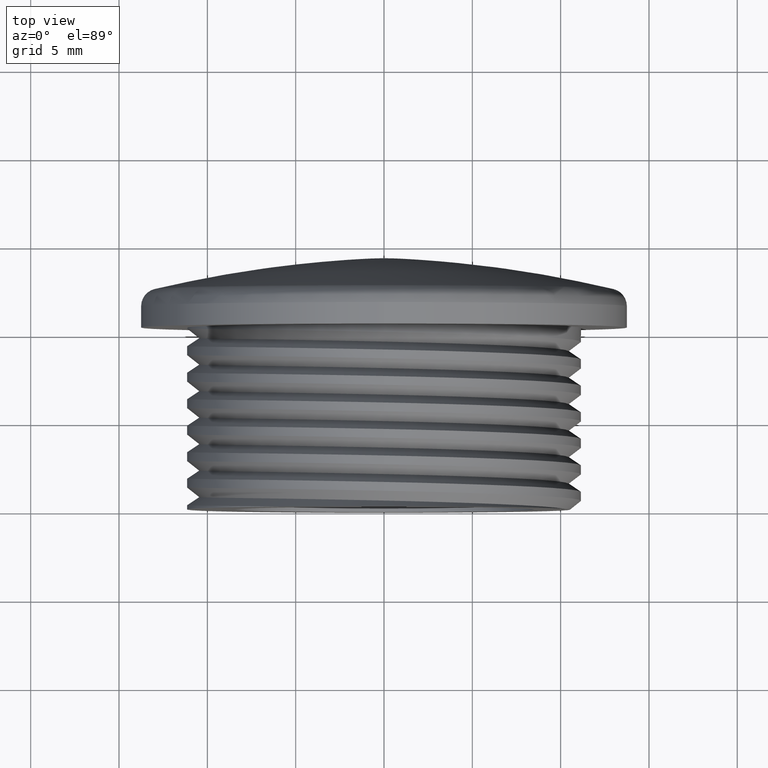
[diagram: clean part render]
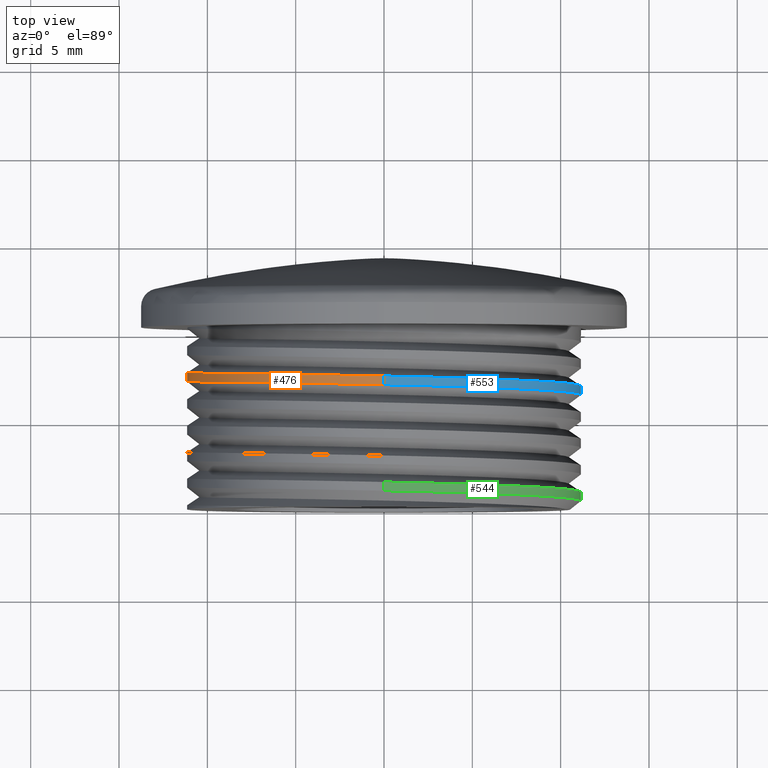
[diagram: same view with three faces highlighted in distinct colors, each labeled with its STEP entity id]
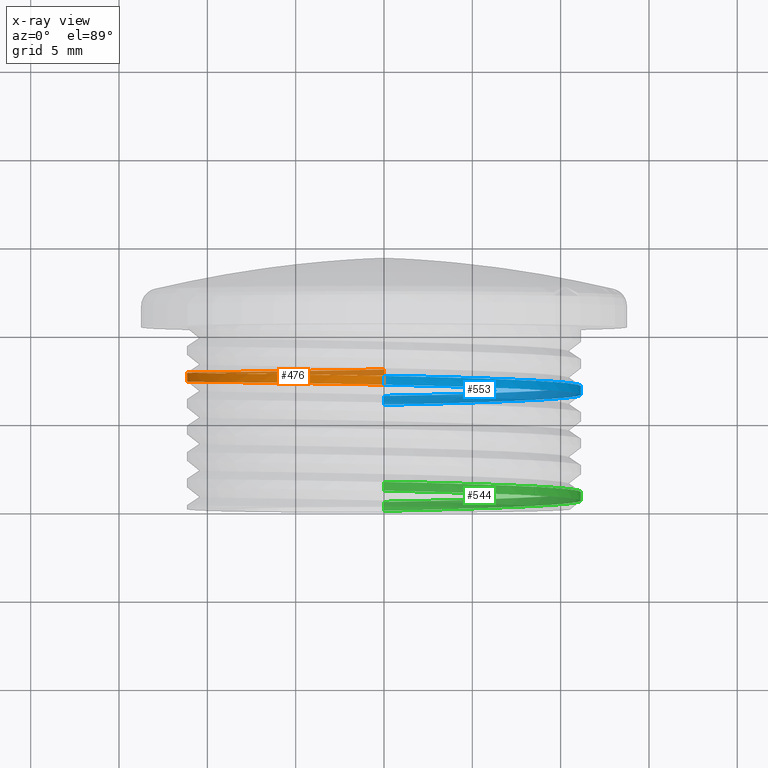
[diagram: x-ray of the same camera — body ghosted, the three highlighted faces saturated]
A machine part, top view with three faces highlighted in distinct colors.
The next image is the same camera in x-ray (body ghosted, the three faces saturated) — at least one of them is partly hidden behind the body in this view.
Their STEP definitions:

[orange] entity #476 — the highlighted cylindrical surface (partial cylindrical patch) has radius 11.15 mm, axis along (0, 1, 0).
#53 = EDGE_LOOP ( 'NONE', ( #1819, #1831, #1830, #1822 ) ) ;
#65 =( BOUNDED_CURVE ( )  B_SPLINE_CURVE ( 2, ( #987, #991, #993, #996, #997, #976, #977, #1007, #982 ),
 .UNSPECIFIED., .F., .T. ) 
 B_SPLINE_CURVE_WITH_KNOTS ( ( 3, 2, 2, 2, 3 ),
 ( 0.08807815879143399100, 0.09688620127422088700, 0.1056942437570077800, 0.1145022862397946800, 0.1233103287225815700 ),
 .UNSPECIFIED. ) 
 CURVE ( )  GEOMETRIC_REPRESENTATION_ITEM ( )  RATIONAL_B_SPLINE_CURVE ( ( 1.000000000000000000, 0.9238795325112867400, 1.000000000000000000, 0.9238795325112867400, 1.000000000000000000, 0.9238795325112867400, 1.000000000000000000, 0.9238795325112867400, 1.000000000000000000 ) ) 
 REPRESENTATION_ITEM ( '' )  );
#66 =( BOUNDED_CURVE ( )  B_SPLINE_CURVE ( 2, ( #1004, #992, #1013, #995, #975, #1035, #1057, #1074, #1056 ),
 .UNSPECIFIED., .F., .T. ) 
 B_SPLINE_CURVE_WITH_KNOTS ( ( 3, 2, 2, 2, 3 ),
 ( 0.3225174112594823000, 0.3313210563783562900, 0.3401247014972302900, 0.3489283466161043300, 0.3577319917349783300 ),
 .UNSPECIFIED. ) 
 CURVE ( )  GEOMETRIC_REPRESENTATION_ITEM ( )  RATIONAL_B_SPLINE_CURVE ( ( 1.000000000000000000, 0.9238795325112867400, 1.000000000000000000, 0.9238795325112867400, 1.000000000000000000, 0.9238795325112867400, 1.000000000000000000, 0.9238795325112867400, 1.000000000000000000 ) ) 
 REPRESENTATION_ITEM ( '' )  );
#418 = VERTEX_POINT ( 'NONE', #1553 ) ;
#439 = VERTEX_POINT ( 'NONE', #1560 ) ;
#454 = VERTEX_POINT ( 'NONE', #1554 ) ;
#455 = VERTEX_POINT ( 'NONE', #1524 ) ;
#471 = EDGE_CURVE ( 'NONE', #418, #454, #1594, .T. ) ;
#476 = ADVANCED_FACE ( 'NONE', ( #571 ), #582, .T. ) ;
#512 = EDGE_CURVE ( 'NONE', #439, #455, #811, .T. ) ;
#551 = EDGE_CURVE ( 'NONE', #455, #454, #65, .T. ) ;
#556 = EDGE_CURVE ( 'NONE', #418, #439, #66, .T. ) ;
#566 = CARTESIAN_POINT ( 'NONE',  ( 0.0000000000000000000, -36.57566321623292500, 0.0000000000000000000 ) ) ;
#571 = FACE_OUTER_BOUND ( 'NONE', #53, .T. ) ;
#575 = DIRECTION ( 'NONE',  ( 0.0000000000000000000, 0.0000000000000000000, 1.000000000000000000 ) ) ;
#582 = CYLINDRICAL_SURFACE ( 'NONE', #1667, 11.15000000000000000 ) ;
#607 = DIRECTION ( 'NONE',  ( 0.0000000000000000000, 1.000000000000000000, 0.0000000000000000000 ) ) ;
#806 = CARTESIAN_POINT ( 'NONE',  ( 1.365481181049298800E-015, -36.57566321623292500, -11.15000000000000000 ) ) ;
#811 = LINE ( 'NONE', #806, #1682 ) ;
#813 = DIRECTION ( 'NONE',  ( 0.0000000000000000000, 1.000000000000000000, 0.0000000000000000000 ) ) ;
#975 = CARTESIAN_POINT ( 'NONE',  ( -11.15000000000000000, 7.244760528949536000, -1.365481181049298800E-015 ) ) ;
#976 = CARTESIAN_POINT ( 'NONE',  ( -11.15000000000000700, 7.648587584210168300, 4.618481220460007600 ) ) ;
#977 = CARTESIAN_POINT ( 'NONE',  ( -7.884240610230006200, 7.554837584210169200, 7.884240610230004400 ) ) ;
#982 = CARTESIAN_POINT ( 'NONE',  ( -2.048221771573948700E-015, 7.367337584210168300, 11.15000000000000000 ) ) ;
#987 = CARTESIAN_POINT ( 'NONE',  ( 6.827405905246491200E-016, 8.117337584210174500, -11.14999999999999500 ) ) ;
#991 = CARTESIAN_POINT ( 'NONE',  ( -4.618481220460009400, 8.023587584210167400, -11.15000000000000000 ) ) ;
#992 = CARTESIAN_POINT ( 'NONE',  ( -4.618481220460016500, 6.963510528949535100, 11.14999999999999900 ) ) ;
#993 = CARTESIAN_POINT ( 'NONE',  ( -7.884240610230004400, 7.929837584210166500, -7.884240610230004400 ) ) ;
#995 = CARTESIAN_POINT ( 'NONE',  ( -11.15000000000000700, 7.151010528949534300, 4.618481220460007600 ) ) ;
#996 = CARTESIAN_POINT ( 'NONE',  ( -11.15000000000000000, 7.836087584210170000, -4.618481220460013000 ) ) ;
#997 = CARTESIAN_POINT ( 'NONE',  ( -11.15000000000000000, 7.742337584210167400, -1.365481181049298800E-015 ) ) ;
#1004 = CARTESIAN_POINT ( 'NONE',  ( -2.048221771573948400E-015, 6.869760528949534300, 11.14999999999999700 ) ) ;
#1007 = CARTESIAN_POINT ( 'NONE',  ( -4.618481220460016500, 7.461087584210167400, 11.14999999999999900 ) ) ;
#1013 = CARTESIAN_POINT ( 'NONE',  ( -7.884240610230006200, 7.057260528949534300, 7.884240610230004400 ) ) ;
#1035 = CARTESIAN_POINT ( 'NONE',  ( -11.15000000000000000, 7.338510528949534300, -4.618481220460013000 ) ) ;
#1056 = CARTESIAN_POINT ( 'NONE',  ( 6.827405905246495200E-016, 7.619760528949536000, -11.15000000000000000 ) ) ;
#1057 = CARTESIAN_POINT ( 'NONE',  ( -7.884240610230004400, 7.432260528949535100, -7.884240610230004400 ) ) ;
#1074 = CARTESIAN_POINT ( 'NONE',  ( -4.618481220460009400, 7.526010528949535100, -11.15000000000000000 ) ) ;
#1524 = CARTESIAN_POINT ( 'NONE',  ( 6.827405905246491200E-016, 8.117337584210174500, -11.14999999999999500 ) ) ;
#1553 = CARTESIAN_POINT ( 'NONE',  ( -2.048221771573948400E-015, 6.869760528949534300, 11.14999999999999700 ) ) ;
#1554 = CARTESIAN_POINT ( 'NONE',  ( -2.048221771573948700E-015, 7.367337584210168300, 11.15000000000000000 ) ) ;
#1560 = CARTESIAN_POINT ( 'NONE',  ( 6.827405905246495200E-016, 7.619760528949536000, -11.15000000000000000 ) ) ;
#1579 = CARTESIAN_POINT ( 'NONE',  ( 0.0000000000000000000, -36.57566321623292500, 11.15000000000000000 ) ) ;
#1594 = LINE ( 'NONE', #1579, #1641 ) ;
#1641 = VECTOR ( 'NONE', #1987, 1000.000000000000000 ) ;
#1667 = AXIS2_PLACEMENT_3D ( 'NONE', #566, #607, #575 ) ;
#1682 = VECTOR ( 'NONE', #813, 1000.000000000000000 ) ;
#1819 = ORIENTED_EDGE ( 'NONE', *, *, #512, .F. ) ;
#1822 = ORIENTED_EDGE ( 'NONE', *, *, #551, .F. ) ;
#1830 = ORIENTED_EDGE ( 'NONE', *, *, #471, .T. ) ;
#1831 = ORIENTED_EDGE ( 'NONE', *, *, #556, .F. ) ;
#1987 = DIRECTION ( 'NONE',  ( 0.0000000000000000000, 1.000000000000000000, 0.0000000000000000000 ) ) ;

[blue] entity #553 — the highlighted cylindrical surface (partial cylindrical patch) has radius 11.15 mm, axis along (0, 1, 0).
#6 =( BOUNDED_CURVE ( )  B_SPLINE_CURVE ( 2, ( #610, #589, #593, #574, #587, #606, #580, #583, #588 ),
 .UNSPECIFIED., .F., .F. ) 
 B_SPLINE_CURVE_WITH_KNOTS ( ( 3, 2, 2, 2, 3 ),
 ( 0.1233103287225815700, 0.1321165433954450400, 0.1409227580683085100, 0.1497289727411719500, 0.1585351874140354100 ),
 .UNSPECIFIED. ) 
 CURVE ( )  GEOMETRIC_REPRESENTATION_ITEM ( )  RATIONAL_B_SPLINE_CURVE ( ( 1.000000000000000000, 0.9238795325112867400, 1.000000000000000000, 0.9238795325112867400, 1.000000000000000000, 0.9238795325112867400, 1.000000000000000000, 0.9238795325112867400, 1.000000000000000000 ) ) 
 REPRESENTATION_ITEM ( '' )  );
#28 = EDGE_LOOP ( 'NONE', ( #1786, #1774, #1808, #1832 ) ) ;
#418 = VERTEX_POINT ( 'NONE', #1553 ) ;
#446 = VERTEX_POINT ( 'NONE', #1530 ) ;
#449 = VERTEX_POINT ( 'NONE', #1520 ) ;
#454 = VERTEX_POINT ( 'NONE', #1554 ) ;
#471 = EDGE_CURVE ( 'NONE', #418, #454, #1594, .T. ) ;
#473 = EDGE_CURVE ( 'NONE', #454, #449, #6, .T. ) ;
#491 = EDGE_CURVE ( 'NONE', #446, #449, #690, .T. ) ;
#513 = EDGE_CURVE ( 'NONE', #446, #418, #1846, .T. ) ;
#553 = ADVANCED_FACE ( 'NONE', ( #1015 ), #989, .T. ) ;
#574 = CARTESIAN_POINT ( 'NONE',  ( 11.15000000000000400, 7.086087584210163800, 4.618481220460020100 ) ) ;
#580 = CARTESIAN_POINT ( 'NONE',  ( 7.884240610230009800, 6.804837584210163800, -7.884240610230008000 ) ) ;
#583 = CARTESIAN_POINT ( 'NONE',  ( 4.618481220460015600, 6.711087584210163800, -11.15000000000000700 ) ) ;
#587 = CARTESIAN_POINT ( 'NONE',  ( 11.15000000000000700, 6.992337584210163800, 2.730962362098598900E-015 ) ) ;
#588 = CARTESIAN_POINT ( 'NONE',  ( 6.827405905246492200E-016, 6.617337584210170900, -11.14999999999999500 ) ) ;
#589 = CARTESIAN_POINT ( 'NONE',  ( 4.618481220460015600, 7.273587584210166500, 11.15000000000000400 ) ) ;
#593 = CARTESIAN_POINT ( 'NONE',  ( 7.884240610230006200, 7.179837584210164700, 7.884240610230011500 ) ) ;
#606 = CARTESIAN_POINT ( 'NONE',  ( 11.15000000000000700, 6.898587584210163800, -4.618481220460013900 ) ) ;
#610 = CARTESIAN_POINT ( 'NONE',  ( -2.048221771573948700E-015, 7.367337584210168300, 11.15000000000000000 ) ) ;
#675 = DIRECTION ( 'NONE',  ( 0.0000000000000000000, 1.000000000000000000, 0.0000000000000000000 ) ) ;
#679 = CARTESIAN_POINT ( 'NONE',  ( 1.365481181049298800E-015, -36.57566321623292500, -11.15000000000000000 ) ) ;
#690 = LINE ( 'NONE', #679, #1657 ) ;
#801 = CARTESIAN_POINT ( 'NONE',  ( 6.827405905246493200E-016, 6.119760528949533400, -11.15000000000000000 ) ) ;
#805 = CARTESIAN_POINT ( 'NONE',  ( 11.15000000000012100, 6.401010528949631100, -4.618481220460060900 ) ) ;
#815 = CARTESIAN_POINT ( 'NONE',  ( 7.884240610230089700, 6.307260528949632800, -7.884240610230089700 ) ) ;
#816 = CARTESIAN_POINT ( 'NONE',  ( 7.884240610230087900, 6.682260528949630200, 7.884240610230091500 ) ) ;
#817 = CARTESIAN_POINT ( 'NONE',  ( 4.618481220460063600, 6.776010528949630200, 11.15000000000011900 ) ) ;
#819 = CARTESIAN_POINT ( 'NONE',  ( 11.15000000000011900, 6.494760528949631100, 2.730962362098627300E-015 ) ) ;
#827 = CARTESIAN_POINT ( 'NONE',  ( 4.618481220460060900, 6.213510528949631100, -11.15000000000012100 ) ) ;
#841 = CARTESIAN_POINT ( 'NONE',  ( 11.15000000000011900, 6.588510528949631100, 4.618481220460066300 ) ) ;
#843 = CARTESIAN_POINT ( 'NONE',  ( -2.048221771573948400E-015, 6.869760528949534300, 11.14999999999999700 ) ) ;
#986 = DIRECTION ( 'NONE',  ( 0.0000000000000000000, 0.0000000000000000000, 1.000000000000000000 ) ) ;
#989 = CYLINDRICAL_SURFACE ( 'NONE', #1726, 11.15000000000000000 ) ;
#1012 = CARTESIAN_POINT ( 'NONE',  ( 0.0000000000000000000, -36.57566321623292500, 0.0000000000000000000 ) ) ;
#1015 = FACE_OUTER_BOUND ( 'NONE', #28, .T. ) ;
#1016 = DIRECTION ( 'NONE',  ( 0.0000000000000000000, 1.000000000000000000, 0.0000000000000000000 ) ) ;
#1520 = CARTESIAN_POINT ( 'NONE',  ( 6.827405905246492200E-016, 6.617337584210170900, -11.14999999999999500 ) ) ;
#1530 = CARTESIAN_POINT ( 'NONE',  ( 6.827405905246493200E-016, 6.119760528949533400, -11.15000000000000000 ) ) ;
#1553 = CARTESIAN_POINT ( 'NONE',  ( -2.048221771573948400E-015, 6.869760528949534300, 11.14999999999999700 ) ) ;
#1554 = CARTESIAN_POINT ( 'NONE',  ( -2.048221771573948700E-015, 7.367337584210168300, 11.15000000000000000 ) ) ;
#1579 = CARTESIAN_POINT ( 'NONE',  ( 0.0000000000000000000, -36.57566321623292500, 11.15000000000000000 ) ) ;
#1594 = LINE ( 'NONE', #1579, #1641 ) ;
#1641 = VECTOR ( 'NONE', #1987, 1000.000000000000000 ) ;
#1657 = VECTOR ( 'NONE', #675, 1000.000000000000000 ) ;
#1726 = AXIS2_PLACEMENT_3D ( 'NONE', #1012, #1016, #986 ) ;
#1774 = ORIENTED_EDGE ( 'NONE', *, *, #491, .T. ) ;
#1786 = ORIENTED_EDGE ( 'NONE', *, *, #513, .F. ) ;
#1808 = ORIENTED_EDGE ( 'NONE', *, *, #473, .F. ) ;
#1832 = ORIENTED_EDGE ( 'NONE', *, *, #471, .F. ) ;
#1846 =( BOUNDED_CURVE ( )  B_SPLINE_CURVE ( 2, ( #801, #827, #815, #805, #819, #841, #816, #817, #843 ),
 .UNSPECIFIED., .F., .F. ) 
 B_SPLINE_CURVE_WITH_KNOTS ( ( 3, 2, 2, 2, 3 ),
 ( 0.2872983416083103600, 0.2961031090211033700, 0.3049078764338963300, 0.3137126438466892900, 0.3225174112594823000 ),
 .UNSPECIFIED. ) 
 CURVE ( )  GEOMETRIC_REPRESENTATION_ITEM ( )  RATIONAL_B_SPLINE_CURVE ( ( 1.000000000000000000, 0.9238795325112867400, 1.000000000000000000, 0.9238795325112867400, 1.000000000000000000, 0.9238795325112867400, 1.000000000000000000, 0.9238795325112867400, 1.000000000000000000 ) ) 
 REPRESENTATION_ITEM ( '' )  );
#1987 = DIRECTION ( 'NONE',  ( 0.0000000000000000000, 1.000000000000000000, 0.0000000000000000000 ) ) ;

[green] entity #544 — the highlighted cylindrical surface (partial cylindrical patch) has radius 11.15 mm, axis along (0, 1, 0).
#33 = EDGE_LOOP ( 'NONE', ( #1795, #1773, #1775, #1762 ) ) ;
#421 = VERTEX_POINT ( 'NONE', #1531 ) ;
#423 = VERTEX_POINT ( 'NONE', #1564 ) ;
#427 = VERTEX_POINT ( 'NONE', #1535 ) ;
#457 = VERTEX_POINT ( 'NONE', #1569 ) ;
#498 = EDGE_CURVE ( 'NONE', #421, #457, #1840, .T. ) ;
#501 = EDGE_CURVE ( 'NONE', #423, #427, #1849, .T. ) ;
#518 = EDGE_CURVE ( 'NONE', #457, #423, #868, .T. ) ;
#520 = EDGE_CURVE ( 'NONE', #421, #427, #878, .T. ) ;
#544 = ADVANCED_FACE ( 'NONE', ( #736 ), #705, .T. ) ;
#705 = CYLINDRICAL_SURFACE ( 'NONE', #1707, 11.15000000000000000 ) ;
#723 = DIRECTION ( 'NONE',  ( 0.0000000000000000000, 1.000000000000000000, 0.0000000000000000000 ) ) ;
#735 = DIRECTION ( 'NONE',  ( 0.0000000000000000000, 0.0000000000000000000, 1.000000000000000000 ) ) ;
#736 = FACE_OUTER_BOUND ( 'NONE', #33, .T. ) ;
#743 = CARTESIAN_POINT ( 'NONE',  ( 0.0000000000000000000, -36.57566321623292500, 0.0000000000000000000 ) ) ;
#748 = CARTESIAN_POINT ( 'NONE',  ( 6.827405905246495200E-016, 0.6173375842101664900, -11.15000000000000400 ) ) ;
#752 = CARTESIAN_POINT ( 'NONE',  ( 7.884240610230013300, 0.6822605289495455900, 7.884240610230015100 ) ) ;
#758 = CARTESIAN_POINT ( 'NONE',  ( 11.15000000000000000, 0.9923375842101670500, 2.730962362098597700E-015 ) ) ;
#759 = CARTESIAN_POINT ( 'NONE',  ( 4.618481220460013000, 0.7110875842101671600, -11.15000000000000000 ) ) ;
#766 = CARTESIAN_POINT ( 'NONE',  ( 11.15000000000001300, 0.5885105289495454800, 4.618481220460023600 ) ) ;
#768 = CARTESIAN_POINT ( 'NONE',  ( 6.827405905246493200E-016, 0.1197605289495338000, -11.14999999999999700 ) ) ;
#769 = CARTESIAN_POINT ( 'NONE',  ( -2.048221771573948400E-015, 0.8697605289495341500, 11.14999999999999700 ) ) ;
#771 = CARTESIAN_POINT ( 'NONE',  ( 7.884240610230015100, 0.3072605289495455300, -7.884240610230015100 ) ) ;
#787 = CARTESIAN_POINT ( 'NONE',  ( 4.618481220460018300, 0.7760105289495457000, 11.15000000000001300 ) ) ;
#790 = CARTESIAN_POINT ( 'NONE',  ( -2.048221771573948700E-015, 1.367337584210167200, 11.15000000000000000 ) ) ;
#791 = CARTESIAN_POINT ( 'NONE',  ( 11.15000000000001300, 0.4947605289495455300, 2.730962362098600800E-015 ) ) ;
#792 = CARTESIAN_POINT ( 'NONE',  ( 4.618481220460013900, 1.273587584210167200, 11.14999999999999900 ) ) ;
#793 = CARTESIAN_POINT ( 'NONE',  ( 4.618481220460017400, 0.2135105289495454800, -11.15000000000001500 ) ) ;
#794 = CARTESIAN_POINT ( 'NONE',  ( 11.15000000000001500, 0.4010105289495454800, -4.618481220460016500 ) ) ;
#795 = CARTESIAN_POINT ( 'NONE',  ( 7.884240610230002700, 1.179837584210167200, 7.884240610230008000 ) ) ;
#796 = CARTESIAN_POINT ( 'NONE',  ( 11.14999999999999900, 1.086087584210167200, 4.618481220460017400 ) ) ;
#797 = CARTESIAN_POINT ( 'NONE',  ( 11.15000000000000000, 0.8985875842101674900, -4.618481220460011200 ) ) ;
#798 = CARTESIAN_POINT ( 'NONE',  ( 7.884240610230004400, 0.8048375842101674900, -7.884240610230004400 ) ) ;
#861 = CARTESIAN_POINT ( 'NONE',  ( 0.0000000000000000000, -36.57566321623292500, 11.15000000000000000 ) ) ;
#864 = CARTESIAN_POINT ( 'NONE',  ( 1.365481181049298800E-015, -36.57566321623292500, -11.15000000000000000 ) ) ;
#868 = LINE ( 'NONE', #861, #1681 ) ;
#871 = DIRECTION ( 'NONE',  ( 0.0000000000000000000, 1.000000000000000000, 0.0000000000000000000 ) ) ;
#878 = LINE ( 'NONE', #864, #1712 ) ;
#884 = DIRECTION ( 'NONE',  ( 0.0000000000000000000, 1.000000000000000000, 0.0000000000000000000 ) ) ;
#1531 = CARTESIAN_POINT ( 'NONE',  ( 6.827405905246493200E-016, 0.1197605289495338000, -11.14999999999999700 ) ) ;
#1535 = CARTESIAN_POINT ( 'NONE',  ( 6.827405905246495200E-016, 0.6173375842101664900, -11.15000000000000400 ) ) ;
#1564 = CARTESIAN_POINT ( 'NONE',  ( -2.048221771573948700E-015, 1.367337584210167200, 11.15000000000000000 ) ) ;
#1569 = CARTESIAN_POINT ( 'NONE',  ( -2.048221771573948400E-015, 0.8697605289495341500, 11.14999999999999700 ) ) ;
#1681 = VECTOR ( 'NONE', #871, 1000.000000000000000 ) ;
#1707 = AXIS2_PLACEMENT_3D ( 'NONE', #743, #723, #735 ) ;
#1712 = VECTOR ( 'NONE', #884, 1000.000000000000000 ) ;
#1762 = ORIENTED_EDGE ( 'NONE', *, *, #518, .F. ) ;
#1773 = ORIENTED_EDGE ( 'NONE', *, *, #520, .T. ) ;
#1775 = ORIENTED_EDGE ( 'NONE', *, *, #501, .F. ) ;
#1795 = ORIENTED_EDGE ( 'NONE', *, *, #498, .F. ) ;
#1840 =( BOUNDED_CURVE ( )  B_SPLINE_CURVE ( 2, ( #768, #793, #771, #794, #791, #766, #752, #787, #769 ),
 .UNSPECIFIED., .F., .T. ) 
 B_SPLINE_CURVE_WITH_KNOTS ( ( 3, 2, 2, 2, 3 ),
 ( 0.005582549902063749200, 0.01438466374327528900, 0.02318677758448682900, 0.03198889142569837100, 0.04079100526690990900 ),
 .UNSPECIFIED. ) 
 CURVE ( )  GEOMETRIC_REPRESENTATION_ITEM ( )  RATIONAL_B_SPLINE_CURVE ( ( 1.000000000000000000, 0.9238795325112867400, 1.000000000000000000, 0.9238795325112867400, 1.000000000000000000, 0.9238795325112867400, 1.000000000000000000, 0.9238795325112867400, 1.000000000000000000 ) ) 
 REPRESENTATION_ITEM ( '' )  );
#1849 =( BOUNDED_CURVE ( )  B_SPLINE_CURVE ( 2, ( #790, #792, #795, #796, #758, #797, #798, #759, #748 ),
 .UNSPECIFIED., .F., .F. ) 
 B_SPLINE_CURVE_WITH_KNOTS ( ( 3, 2, 2, 2, 3 ),
 ( 0.4051457631524040800, 0.4139534288590176500, 0.4227610945656312100, 0.4315687602722447800, 0.4403764259788583400 ),
 .UNSPECIFIED. ) 
 CURVE ( )  GEOMETRIC_REPRESENTATION_ITEM ( )  RATIONAL_B_SPLINE_CURVE ( ( 1.000000000000000000, 0.9238795325112867400, 1.000000000000000000, 0.9238795325112867400, 1.000000000000000000, 0.9238795325112867400, 1.000000000000000000, 0.9238795325112867400, 1.000000000000000000 ) ) 
 REPRESENTATION_ITEM ( '' )  );